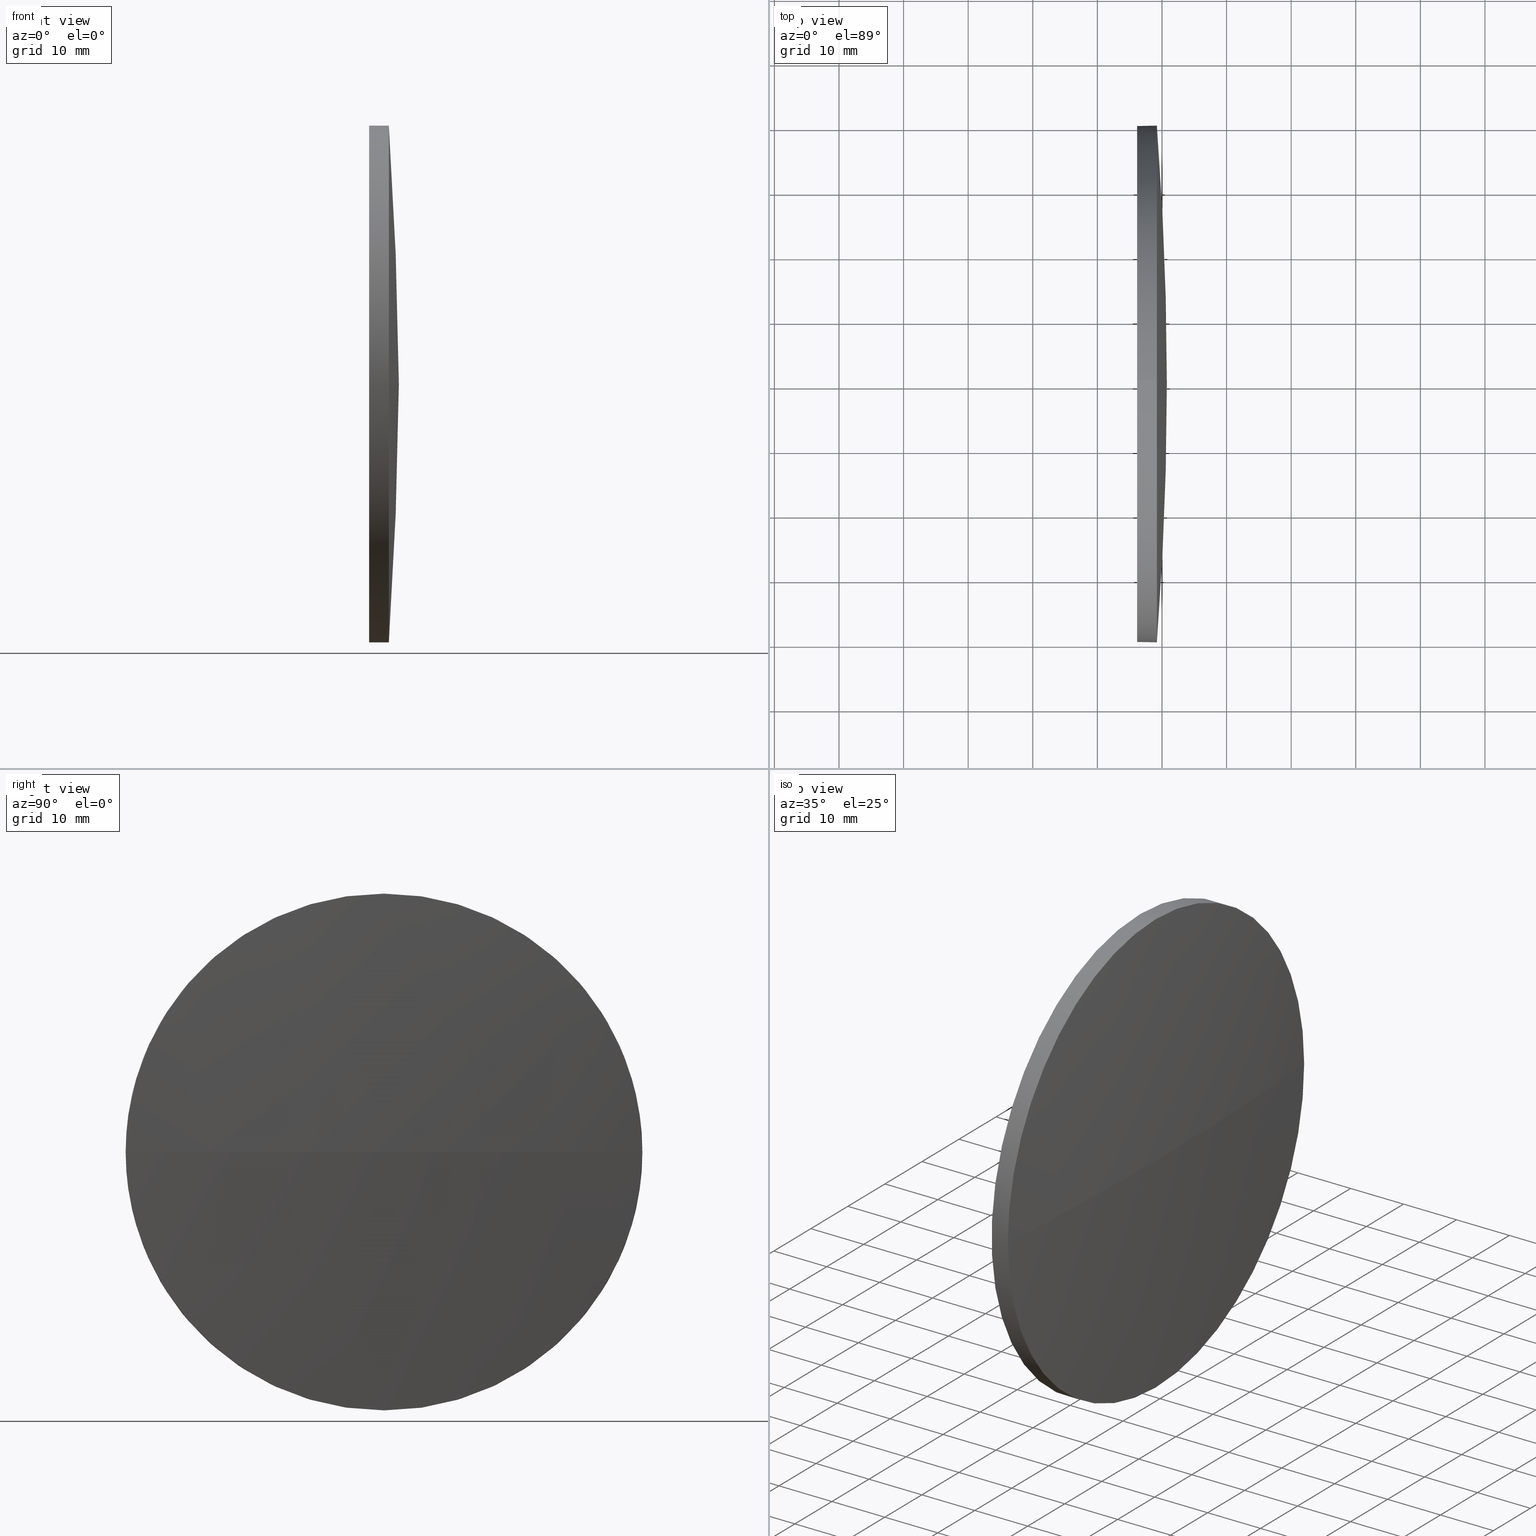
[diagram: canonical four-view strip — front | top / right | iso, engineering-drawing reading convention]
A machine part, canonical four-view strip (front | top / right | iso — engineering-drawing reading convention). The complete STEP part file that produces these views, byte-faithful:
ISO-10303-21;
HEADER;
FILE_DESCRIPTION (( 'STEP AP214' ),
    '1' );
FILE_NAME ('100081.STEP',
    '2019-05-10T08:55:46',
    ( '' ),
    ( '' ),
    'SwSTEP 2.0',
    'SolidWorks 2016',
    '' );
FILE_SCHEMA (( 'AUTOMOTIVE_DESIGN' ));
ENDSEC;

DATA;
#1 = APPLICATION_PROTOCOL_DEFINITION ( 'draft international standard', 'automotive_design', 1998, #106 ) ;
#2 = PRODUCT_DEFINITION_FORMATION_WITH_SPECIFIED_SOURCE ( '�κ�', '', #81, .NOT_KNOWN. ) ;
#3 = ORIENTED_EDGE ( 'NONE', *, *, #67, .T. ) ;
#4 = EDGE_CURVE ( 'NONE', #39, #54, #95, .T. ) ;
#5 = LINE ( 'NONE', #100, #146 ) ;
#6 = AXIS2_PLACEMENT_3D ( 'NONE', #116, #161, #141 ) ;
#7 = EDGE_LOOP ( 'NONE', ( #85, #103, #101, #43, #158 ) ) ;
#8 = DIRECTION ( 'NONE',  ( 0.0000000000000000000, 0.0000000000000000000, -1.000000000000000000 ) ) ;
#9 = CARTESIAN_POINT ( 'NONE',  ( -276.1479059196190600, 130.0418907599245100, 0.0000000000000000000 ) ) ;
#10 = CARTESIAN_POINT ( 'NONE',  ( 217.3311486608872700, 130.0418907599245100, 40.00000000000000700 ) ) ;
#11 = APPLICATION_CONTEXT ( 'automotive_design' ) ;
#12 = ORIENTED_EDGE ( 'NONE', *, *, #96, .F. ) ;
#13 = CARTESIAN_POINT ( 'NONE',  ( -276.1479059196190600, 130.0418907599245100, 0.0000000000000000000 ) ) ;
#14 = VERTEX_POINT ( 'NONE', #53 ) ;
#15 = SURFACE_STYLE_FILL_AREA ( #78 ) ;
#16 = FACE_OUTER_BOUND ( 'NONE', #111, .T. ) ;
#17 =( NAMED_UNIT ( * ) PLANE_ANGLE_UNIT ( ) SI_UNIT ( $, .RADIAN. ) );
#18 = APPLICATION_PROTOCOL_DEFINITION ( 'draft international standard', 'automotive_design', 1998, #11 ) ;
#19 = AXIS2_PLACEMENT_3D ( 'NONE', #105, #77, #121 ) ;
#20 = PRESENTATION_STYLE_ASSIGNMENT (( #79 ) ) ;
#21 = SURFACE_STYLE_USAGE ( .BOTH. , #88 ) ;
#22 = CARTESIAN_POINT ( 'NONE',  ( 217.3311486608872700, 130.0418907599245100, 0.0000000000000000000 ) ) ;
#23 = DIRECTION ( 'NONE',  ( -1.000000000000000000, -0.0000000000000000000, -0.0000000000000000000 ) ) ;
#24 = AXIS2_PLACEMENT_3D ( 'NONE', #9, #44, #66 ) ;
#25 = LINE ( 'NONE', #10, #90 ) ;
#26 =( NAMED_UNIT ( * ) SI_UNIT ( $, .STERADIAN. ) SOLID_ANGLE_UNIT ( ) );
#27 = SURFACE_STYLE_FILL_AREA ( #150 ) ;
#28 = PRESENTATION_STYLE_ASSIGNMENT (( #21 ) ) ;
#29 = VERTEX_POINT ( 'NONE', #32 ) ;
#30 = EDGE_CURVE ( 'NONE', #54, #14, #63, .T. ) ;
#31 = AXIS2_PLACEMENT_3D ( 'NONE', #52, #159, #8 ) ;
#32 = CARTESIAN_POINT ( 'NONE',  ( 236.1561263384603500, 130.0418907599245100, -40.00000000000000700 ) ) ;
#33 = PLANE ( 'NONE',  #31 ) ;
#34 = CARTESIAN_POINT ( 'NONE',  ( 0.0000000000000000000, 0.0000000000000000000, 0.0000000000000000000 ) ) ;
#35 = FILL_AREA_STYLE_COLOUR ( '', #109 ) ;
#36 = UNCERTAINTY_MEASURE_WITH_UNIT (LENGTH_MEASURE( 1.000000000000000100E-005 ), #102, 'distance_accuracy_value', 'NONE');
#37 = PRODUCT_DEFINITION_SHAPE ( 'NONE', 'NONE',  #98 ) ;
#38 = DIRECTION ( 'NONE',  ( 0.0000000000000000000, 1.000000000000000000, 0.0000000000000000000 ) ) ;
#39 = VERTEX_POINT ( 'NONE', #175 ) ;
#40 = ADVANCED_BREP_SHAPE_REPRESENTATION ( '100081', ( #104, #72 ), #137 ) ;
#41 = ORIENTED_EDGE ( 'NONE', *, *, #115, .T. ) ;
#42 = CIRCLE ( 'NONE', #19, 40.00000000000000700 ) ;
#43 = ORIENTED_EDGE ( 'NONE', *, *, #89, .T. ) ;
#44 = DIRECTION ( 'NONE',  ( 0.0000000000000000000, 1.224646799147353200E-016, -1.000000000000000000 ) ) ;
#45 = ADVANCED_FACE ( 'NONE', ( #94 ), #33, .F. ) ;
#46 = DIRECTION ( 'NONE',  ( -1.000000000000000000, -0.0000000000000000000, -0.0000000000000000000 ) ) ;
#47 = CYLINDRICAL_SURFACE ( 'NONE', #107, 40.00000000000000700 ) ;
#48 = CARTESIAN_POINT ( 'NONE',  ( 239.2061263384603600, 130.0418907599245100, -40.00000000000000700 ) ) ;
#49 =( GEOMETRIC_REPRESENTATION_CONTEXT ( 3 ) GLOBAL_UNCERTAINTY_ASSIGNED_CONTEXT ( ( #139 ) ) GLOBAL_UNIT_ASSIGNED_CONTEXT ( ( #153, #136, #26 ) ) REPRESENTATION_CONTEXT ( 'NONE', 'WORKASPACE' ) );
#50 = AXIS2_PLACEMENT_3D ( 'NONE', #127, #142, #71 ) ;
#51 = AXIS2_PLACEMENT_3D ( 'NONE', #169, #145, #86 ) ;
#52 = CARTESIAN_POINT ( 'NONE',  ( 236.1561263384603500, 130.0418907599245100, 0.0000000000000000000 ) ) ;
#53 = CARTESIAN_POINT ( 'NONE',  ( 239.2061263384603600, 130.0418907599245100, 40.00000000000000700 ) ) ;
#54 = VERTEX_POINT ( 'NONE', #114 ) ;
#55 = AXIS2_PLACEMENT_3D ( 'NONE', #61, #168, #133 ) ;
#56 = ADVANCED_FACE ( 'NONE', ( #58 ), #47, .T. ) ;
#57 =( NAMED_UNIT ( * ) PLANE_ANGLE_UNIT ( ) SI_UNIT ( $, .RADIAN. ) );
#58 = FACE_OUTER_BOUND ( 'NONE', #76, .T. ) ;
#59 = DIRECTION ( 'NONE',  ( 0.0000000000000000000, 0.0000000000000000000, 1.000000000000000000 ) ) ;
#60 = ORIENTED_EDGE ( 'NONE', *, *, #4, .F. ) ;
#61 = CARTESIAN_POINT ( 'NONE',  ( -276.1479059196190600, 130.0418907599245100, 0.0000000000000000000 ) ) ;
#62 = EDGE_CURVE ( 'NONE', #29, #155, #128, .T. ) ;
#63 = CIRCLE ( 'NONE', #6, 40.00000000000000700 ) ;
#64 = EDGE_LOOP ( 'NONE', ( #184, #110, #152, #68 ) ) ;
#65 = COLOUR_RGB ( '',1.000000000000000000, 1.000000000000000000, 1.000000000000000000 ) ;
#66 = DIRECTION ( 'NONE',  ( 0.0000000000000000000, 1.000000000000000000, 1.224646799147353200E-016 ) ) ;
#67 = EDGE_CURVE ( 'NONE', #39, #180, #99, .T. ) ;
#68 = ORIENTED_EDGE ( 'NONE', *, *, #162, .F. ) ;
#69 = ADVANCED_FACE ( 'NONE', ( #124 ), #92, .T. ) ;
#70 = DIRECTION ( 'NONE',  ( 0.0000000000000000000, 0.0000000000000000000, 1.000000000000000000 ) ) ;
#71 = DIRECTION ( 'NONE',  ( 0.0000000000000000000, 0.0000000000000000000, 1.000000000000000000 ) ) ;
#72 = AXIS2_PLACEMENT_3D ( 'NONE', #34, #135, #80 ) ;
#73 = CARTESIAN_POINT ( 'NONE',  ( 239.2061263384603600, 130.0418907599245100, 0.0000000000000000000 ) ) ;
#74 = ORIENTED_EDGE ( 'NONE', *, *, #62, .T. ) ;
#75 = PRODUCT_DEFINITION_CONTEXT ( 'detailed design', #106, 'design' ) ;
#76 = EDGE_LOOP ( 'NONE', ( #143, #41, #12, #125, #122 ) ) ;
#77 = DIRECTION ( 'NONE',  ( -1.000000000000000000, -0.0000000000000000000, -0.0000000000000000000 ) ) ;
#78 = FILL_AREA_STYLE ('',( #174 ) ) ;
#79 = SURFACE_STYLE_USAGE ( .BOTH. , #132 ) ;
#80 = DIRECTION ( 'NONE',  ( 1.000000000000000000, 0.0000000000000000000, 0.0000000000000000000 ) ) ;
#81 = PRODUCT ( '100081', '100081', '', ( #185 ) ) ;
#82 = MECHANICAL_DESIGN_GEOMETRIC_PRESENTATION_REPRESENTATION (  '', ( #93 ), #49 ) ;
#83 = UNCERTAINTY_MEASURE_WITH_UNIT (LENGTH_MEASURE( 1.000000000000000100E-005 ), #120, 'distance_accuracy_value', 'NONE');
#84 = AXIS2_PLACEMENT_3D ( 'NONE', #117, #134, #97 ) ;
#85 = ORIENTED_EDGE ( 'NONE', *, *, #115, .F. ) ;
#86 = DIRECTION ( 'NONE',  ( 0.0000000000000000000, 0.0000000000000000000, 1.000000000000000000 ) ) ;
#87 = SHAPE_DEFINITION_REPRESENTATION ( #37, #40 ) ;
#88 = SURFACE_SIDE_STYLE ('',( #15 ) ) ;
#89 = EDGE_CURVE ( 'NONE', #14, #155, #25, .T. ) ;
#90 = VECTOR ( 'NONE', #182, 1000.000000000000000 ) ;
#91 = PRESENTATION_LAYER_ASSIGNMENT (  '', '', ( #93 ) ) ;
#92 = SPHERICAL_SURFACE ( 'NONE', #118, 516.9040322580793800 ) ;
#93 = STYLED_ITEM ( 'NONE', ( #20 ), #40 ) ;
#94 = FACE_OUTER_BOUND ( 'NONE', #130, .T. ) ;
#95 = CIRCLE ( 'NONE', #24, 516.9040322580793800 ) ;
#96 = EDGE_CURVE ( 'NONE', #155, #29, #173, .T. ) ;
#97 = DIRECTION ( 'NONE',  ( 0.0000000000000000000, 0.0000000000000000000, 1.000000000000000000 ) ) ;
#98 = PRODUCT_DEFINITION ( 'δ֪', '', #2, #75 ) ;
#99 = CIRCLE ( 'NONE', #55, 516.9040322580793800 ) ;
#100 = CARTESIAN_POINT ( 'NONE',  ( 217.3311486608872700, 130.0418907599245100, -40.00000000000000700 ) ) ;
#101 = ORIENTED_EDGE ( 'NONE', *, *, #30, .T. ) ;
#102 =( LENGTH_UNIT ( ) NAMED_UNIT ( * ) SI_UNIT ( .MILLI., .METRE. ) );
#103 = ORIENTED_EDGE ( 'NONE', *, *, #123, .T. ) ;
#104 = MANIFOLD_SOLID_BREP ( '��ת1', #160 ) ;
#105 = CARTESIAN_POINT ( 'NONE',  ( 239.2061263384603600, 130.0418907599245100, 0.0000000000000000000 ) ) ;
#106 = APPLICATION_CONTEXT ( 'automotive_design' ) ;
#107 = AXIS2_PLACEMENT_3D ( 'NONE', #144, #163, #70 ) ;
#108 = FACE_OUTER_BOUND ( 'NONE', #7, .T. ) ;
#109 = COLOUR_RGB ( '',1.000000000000000000, 1.000000000000000000, 1.000000000000000000 ) ;
#110 = ORIENTED_EDGE ( 'NONE', *, *, #4, .T. ) ;
#111 = EDGE_LOOP ( 'NONE', ( #60, #3, #154, #171 ) ) ;
#112 = CIRCLE ( 'NONE', #172, 40.00000000000000700 ) ;
#113 = AXIS2_PLACEMENT_3D ( 'NONE', #13, #129, #147 ) ;
#114 = CARTESIAN_POINT ( 'NONE',  ( 239.2061263384603400, 90.04189075992455600, -4.898587196589405900E-015 ) ) ;
#115 = EDGE_CURVE ( 'NONE', #140, #29, #5, .T. ) ;
#116 = CARTESIAN_POINT ( 'NONE',  ( 239.2061263384603600, 130.0418907599245100, 0.0000000000000000000 ) ) ;
#117 = CARTESIAN_POINT ( 'NONE',  ( 236.1561263384603500, 130.0418907599245100, 0.0000000000000000000 ) ) ;
#118 = AXIS2_PLACEMENT_3D ( 'NONE', #178, #181, #38 ) ;
#119 = DIRECTION ( 'NONE',  ( 0.0000000000000000000, 0.0000000000000000000, 1.000000000000000000 ) ) ;
#120 =( LENGTH_UNIT ( ) NAMED_UNIT ( * ) SI_UNIT ( .MILLI., .METRE. ) );
#121 = DIRECTION ( 'NONE',  ( 0.0000000000000000000, 0.0000000000000000000, 1.000000000000000000 ) ) ;
#122 = ORIENTED_EDGE ( 'NONE', *, *, #183, .T. ) ;
#123 = EDGE_CURVE ( 'NONE', #140, #54, #42, .T. ) ;
#124 = FACE_OUTER_BOUND ( 'NONE', #64, .T. ) ;
#125 = ORIENTED_EDGE ( 'NONE', *, *, #89, .F. ) ;
#126 = STYLED_ITEM ( 'NONE', ( #28 ), #104 ) ;
#127 = CARTESIAN_POINT ( 'NONE',  ( 236.1561263384603500, 130.0418907599245100, 0.0000000000000000000 ) ) ;
#128 = CIRCLE ( 'NONE', #50, 40.00000000000000700 ) ;
#129 = DIRECTION ( 'NONE',  ( -0.0000000000000000000, 0.0000000000000000000, -1.000000000000000000 ) ) ;
#130 = EDGE_LOOP ( 'NONE', ( #177, #74 ) ) ;
#131 = CARTESIAN_POINT ( 'NONE',  ( 239.2061263384603400, 170.0418907599244300, 0.0000000000000000000 ) ) ;
#132 = SURFACE_SIDE_STYLE ('',( #27 ) ) ;
#133 = DIRECTION ( 'NONE',  ( 1.000000000000000000, 0.0000000000000000000, 0.0000000000000000000 ) ) ;
#134 = DIRECTION ( 'NONE',  ( -1.000000000000000000, -0.0000000000000000000, -0.0000000000000000000 ) ) ;
#135 = DIRECTION ( 'NONE',  ( 0.0000000000000000000, 0.0000000000000000000, 1.000000000000000000 ) ) ;
#136 =( NAMED_UNIT ( * ) PLANE_ANGLE_UNIT ( ) SI_UNIT ( $, .RADIAN. ) );
#137 =( GEOMETRIC_REPRESENTATION_CONTEXT ( 3 ) GLOBAL_UNCERTAINTY_ASSIGNED_CONTEXT ( ( #36 ) ) GLOBAL_UNIT_ASSIGNED_CONTEXT ( ( #102, #57, #151 ) ) REPRESENTATION_CONTEXT ( 'NONE', 'WORKASPACE' ) );
#138 = PRESENTATION_LAYER_ASSIGNMENT (  '', '', ( #126 ) ) ;
#139 = UNCERTAINTY_MEASURE_WITH_UNIT (LENGTH_MEASURE( 1.000000000000000100E-005 ), #153, 'distance_accuracy_value', 'NONE');
#140 = VERTEX_POINT ( 'NONE', #48 ) ;
#141 = DIRECTION ( 'NONE',  ( 0.0000000000000000000, 0.0000000000000000000, 1.000000000000000000 ) ) ;
#142 = DIRECTION ( 'NONE',  ( -1.000000000000000000, -0.0000000000000000000, -0.0000000000000000000 ) ) ;
#143 = ORIENTED_EDGE ( 'NONE', *, *, #162, .T. ) ;
#144 = CARTESIAN_POINT ( 'NONE',  ( 217.3311486608872700, 130.0418907599245100, 0.0000000000000000000 ) ) ;
#145 = DIRECTION ( 'NONE',  ( -1.000000000000000000, -0.0000000000000000000, -0.0000000000000000000 ) ) ;
#146 = VECTOR ( 'NONE', #23, 1000.000000000000000 ) ;
#147 = DIRECTION ( 'NONE',  ( 0.0000000000000000000, 1.000000000000000000, 0.0000000000000000000 ) ) ;
#148 = MECHANICAL_DESIGN_GEOMETRIC_PRESENTATION_REPRESENTATION (  '', ( #126 ), #170 ) ;
#149 =( NAMED_UNIT ( * ) SI_UNIT ( $, .STERADIAN. ) SOLID_ANGLE_UNIT ( ) );
#150 = FILL_AREA_STYLE ('',( #35 ) ) ;
#151 =( NAMED_UNIT ( * ) SI_UNIT ( $, .STERADIAN. ) SOLID_ANGLE_UNIT ( ) );
#152 = ORIENTED_EDGE ( 'NONE', *, *, #123, .F. ) ;
#153 =( LENGTH_UNIT ( ) NAMED_UNIT ( * ) SI_UNIT ( .MILLI., .METRE. ) );
#154 = ORIENTED_EDGE ( 'NONE', *, *, #183, .F. ) ;
#155 = VERTEX_POINT ( 'NONE', #165 ) ;
#156 = SPHERICAL_SURFACE ( 'NONE', #113, 516.9040322580793800 ) ;
#157 = PRODUCT_RELATED_PRODUCT_CATEGORY ( 'part', '', ( #81 ) ) ;
#158 = ORIENTED_EDGE ( 'NONE', *, *, #62, .F. ) ;
#159 = DIRECTION ( 'NONE',  ( 1.000000000000000000, 0.0000000000000000000, 0.0000000000000000000 ) ) ;
#160 = CLOSED_SHELL ( 'NONE', ( #56, #69, #164, #167, #45 ) ) ;
#161 = DIRECTION ( 'NONE',  ( -1.000000000000000000, -0.0000000000000000000, -0.0000000000000000000 ) ) ;
#162 = EDGE_CURVE ( 'NONE', #180, #140, #186, .T. ) ;
#163 = DIRECTION ( 'NONE',  ( -1.000000000000000000, -0.0000000000000000000, -0.0000000000000000000 ) ) ;
#164 = ADVANCED_FACE ( 'NONE', ( #16 ), #156, .T. ) ;
#165 = CARTESIAN_POINT ( 'NONE',  ( 236.1561263384603500, 130.0418907599245100, 40.00000000000000700 ) ) ;
#166 = AXIS2_PLACEMENT_3D ( 'NONE', #22, #46, #59 ) ;
#167 = ADVANCED_FACE ( 'NONE', ( #108 ), #176, .T. ) ;
#168 = DIRECTION ( 'NONE',  ( -0.0000000000000000000, 0.0000000000000000000, 1.000000000000000000 ) ) ;
#169 = CARTESIAN_POINT ( 'NONE',  ( 239.2061263384603600, 130.0418907599245100, 0.0000000000000000000 ) ) ;
#170 =( GEOMETRIC_REPRESENTATION_CONTEXT ( 3 ) GLOBAL_UNCERTAINTY_ASSIGNED_CONTEXT ( ( #83 ) ) GLOBAL_UNIT_ASSIGNED_CONTEXT ( ( #120, #17, #149 ) ) REPRESENTATION_CONTEXT ( 'NONE', 'WORKASPACE' ) );
#171 = ORIENTED_EDGE ( 'NONE', *, *, #30, .F. ) ;
#172 = AXIS2_PLACEMENT_3D ( 'NONE', #73, #179, #119 ) ;
#173 = CIRCLE ( 'NONE', #84, 40.00000000000000700 ) ;
#174 = FILL_AREA_STYLE_COLOUR ( '', #65 ) ;
#175 = CARTESIAN_POINT ( 'NONE',  ( 240.7561263384602600, 130.0418907599245400, 0.0000000000000000000 ) ) ;
#176 = CYLINDRICAL_SURFACE ( 'NONE', #166, 40.00000000000000700 ) ;
#177 = ORIENTED_EDGE ( 'NONE', *, *, #96, .T. ) ;
#178 = CARTESIAN_POINT ( 'NONE',  ( -276.1479059196190600, 130.0418907599245100, 0.0000000000000000000 ) ) ;
#179 = DIRECTION ( 'NONE',  ( -1.000000000000000000, -0.0000000000000000000, -0.0000000000000000000 ) ) ;
#180 = VERTEX_POINT ( 'NONE', #131 ) ;
#181 = DIRECTION ( 'NONE',  ( -0.0000000000000000000, 0.0000000000000000000, -1.000000000000000000 ) ) ;
#182 = DIRECTION ( 'NONE',  ( -1.000000000000000000, -0.0000000000000000000, -0.0000000000000000000 ) ) ;
#183 = EDGE_CURVE ( 'NONE', #14, #180, #112, .T. ) ;
#184 = ORIENTED_EDGE ( 'NONE', *, *, #67, .F. ) ;
#185 = PRODUCT_CONTEXT ( 'NONE', #11, 'mechanical' ) ;
#186 = CIRCLE ( 'NONE', #51, 40.00000000000000700 ) ;
ENDSEC;
END-ISO-10303-21;
